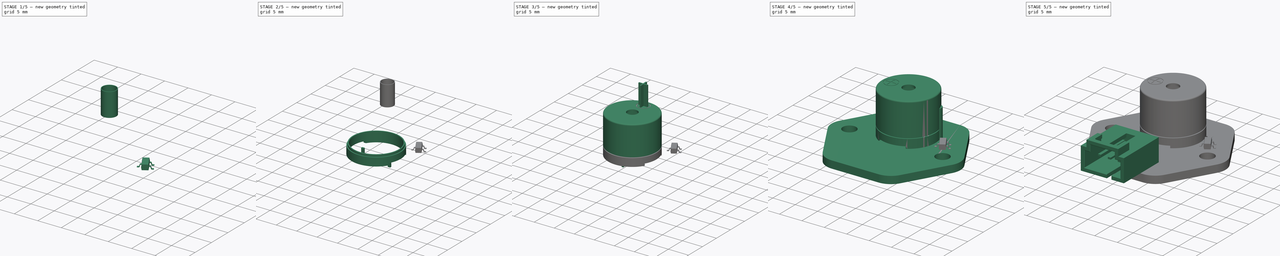
[diagram: build sequence overview — one tinted view per stage of 5, left to right]
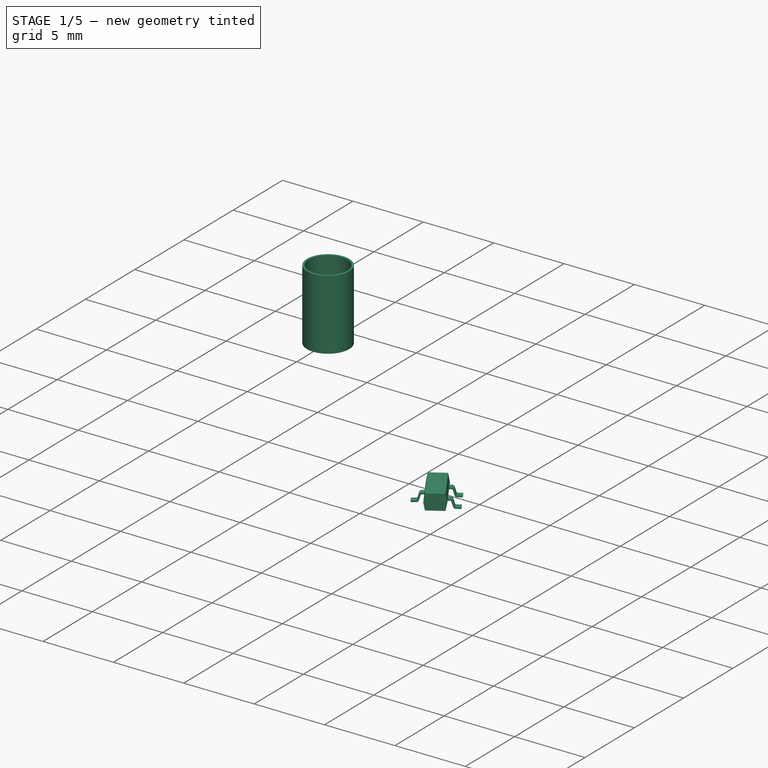
[diagram: stage 1 of 5 — iso view after this stage's code; geometry added in this stage tinted green]
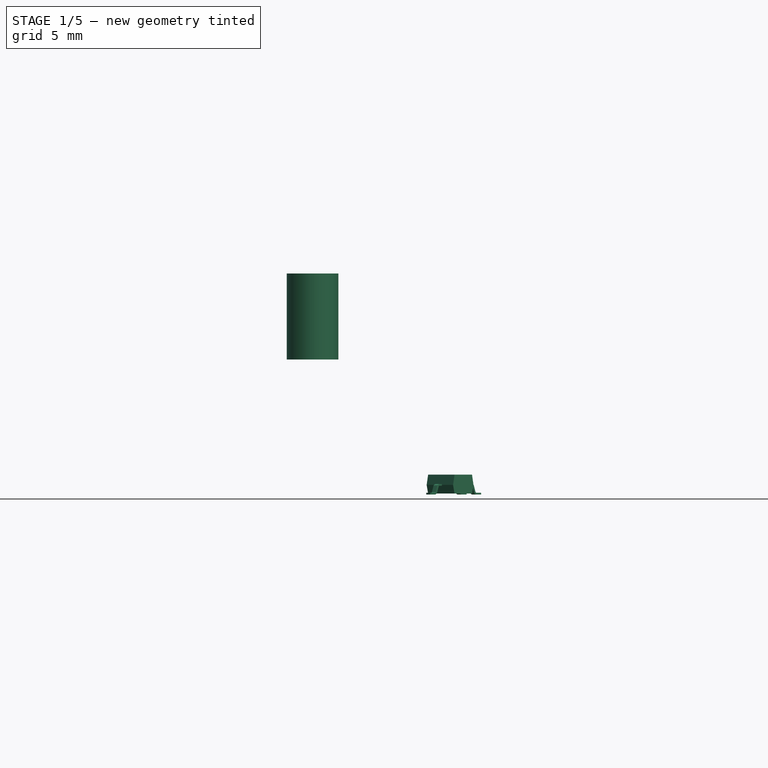
[diagram: stage 1 of 5 — front view after this stage's code; geometry added in this stage tinted green]
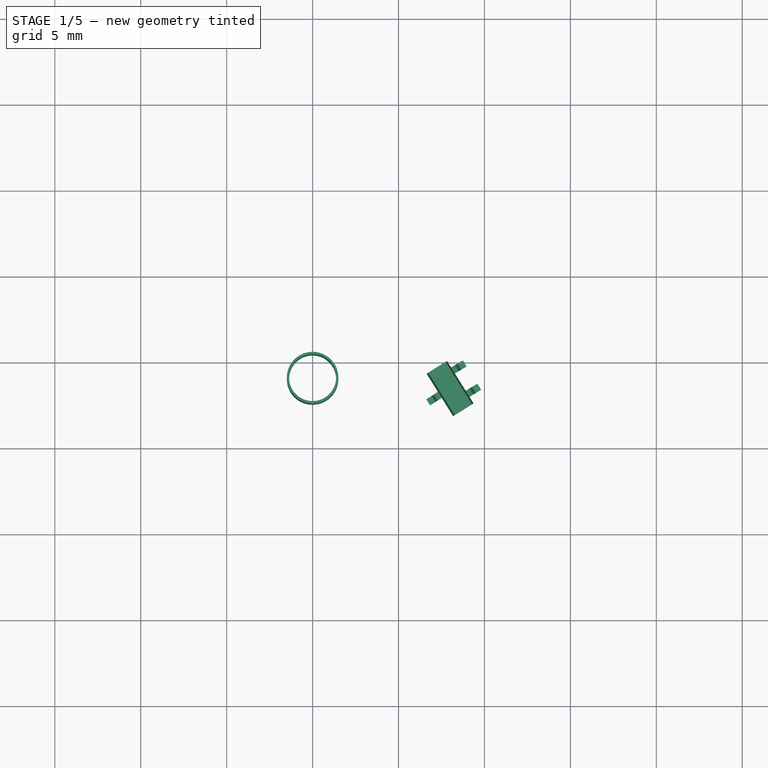
[diagram: stage 1 of 5 — top view after this stage's code; geometry added in this stage tinted green]
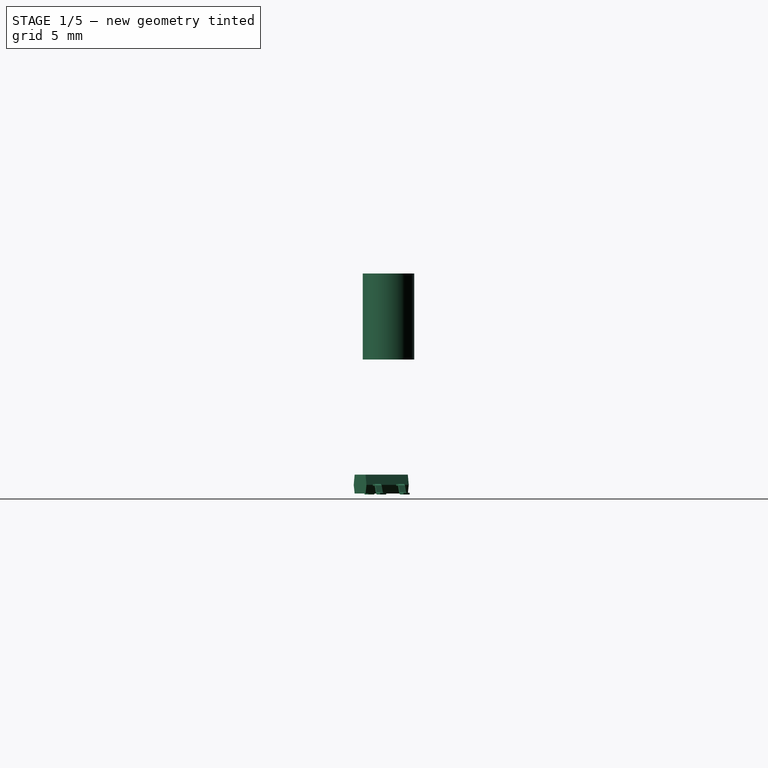
[diagram: stage 1 of 5 — right view after this stage's code; geometry added in this stage tinted green]
FCSTD DOCUMENT  (FreeCAD 0.14R3692 (Git))
Label: ZumBuzzer
License: CC-BY 3.0
LicenseURL: http://creativecommons.org/licenses/by/3.0/
objects: PartDesign::Pad×6, Part::Cut×6, Sketcher::SketchObject×6, Part::MultiFuse×4, Part::Cylinder×3, Part::Box×3, Part::Sweep×3, App::DocumentObjectGroup×2, PartDesign::Revolution×2, Part::Fillet×1
note: 42 computed .brp shape members not serialized (recipe doc carries the construction recipe); baked Part::Feature solids carry a one-line shape summary decoded from their .brp

FEATURE [Sketcher::SketchObject] Sketch004  label="Skt_troquelCircular"
  Placement = pos=(0,0,9.5) rot=(0,0,1;0rad)
  sketch-geometry (2):
    g0: Circle CenterX=0 CenterY=3.92336 CenterZ=0 NormalX=0 NormalY=0 NormalZ=1 Radius=1.5
    g1: Circle CenterX=0 CenterY=3.92336 CenterZ=0 NormalX=0 NormalY=0 NormalZ=1 Radius=1.36584
  constraints (3):
    c: Radius(g0) = 1.5
    c: PointOnObject(g0,g-2)
    c: Coincident(g1,g0)
FEATURE [PartDesign::Pad] Pad004  label="Ext_troquelCirc"
  Length = 5
  Length2 = 100
  Placement = pos=(0,0,9.5) rot=(0,0,1;0rad)
  Sketch = -> Sketch004
  Type = 0
FEATURE [Part::Sweep] Sweep003
  Frenet = false
  Placement = pos=(0,-0.8,0) rot=(0,0,1;3.14159rad)
  Sections = -> [Sketch001]
  Solid = true
  Spine = -> Sketch002 [Edge5,Edge4,Edge3,Edge2,Edge1]
  Transition = 1
FEATURE [Part::Sweep] Sweep004
  Frenet = false
  Sections = -> [Sketch001]
  Solid = true
  Spine = -> Sketch002 [Edge5,Edge4,Edge3,Edge2,Edge1]
  Transition = 1
FEATURE [Part::Sweep] Sweep005
  Frenet = false
  Placement = pos=(0,0.8,0) rot=(0,0,1;3.14159rad)
  Sections = -> [Sketch001]
  Solid = true
  Spine = -> Sketch002 [Edge5,Edge4,Edge3,Edge2,Edge1]
  Transition = 1
FEATURE [PartDesign::Pad] Pad006
  Length = 2.9
  Length2 = 100
  Placement = pos=(0,1.45,0) rot=(1,0,0;1.5708rad)
  Sketch = -> Sketch
  Type = 0
FEATURE [Part::MultiFuse] Fusion003  label="SOT23"
  Placement = pos=(8,3.5,2.2) rot=(0,0,-1;2.58309rad)
  Shapes = -> [Pad006,Sweep005,Sweep003,Sweep004]
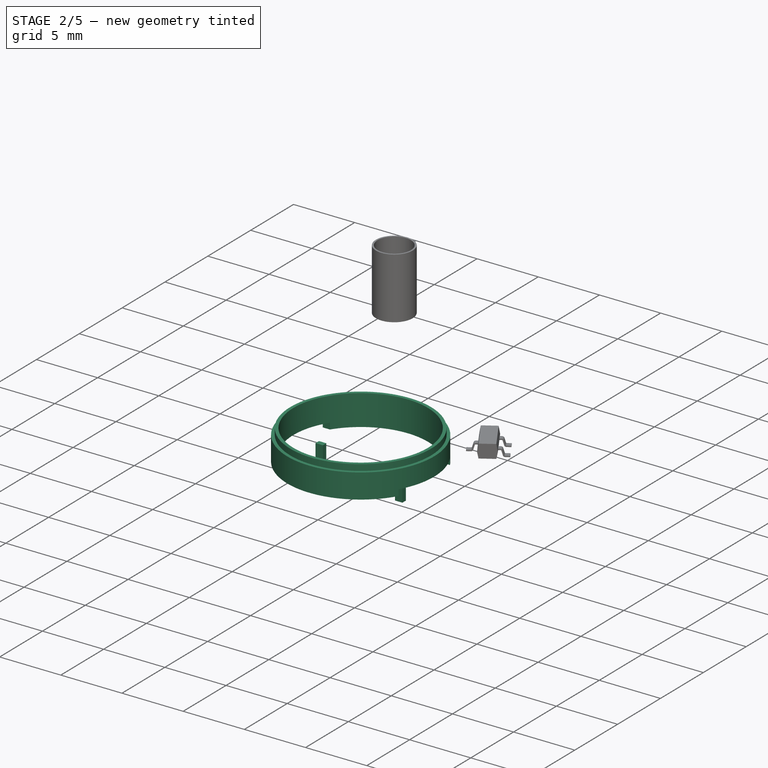
[diagram: stage 2 of 5 — iso view after this stage's code; geometry added in this stage tinted green]
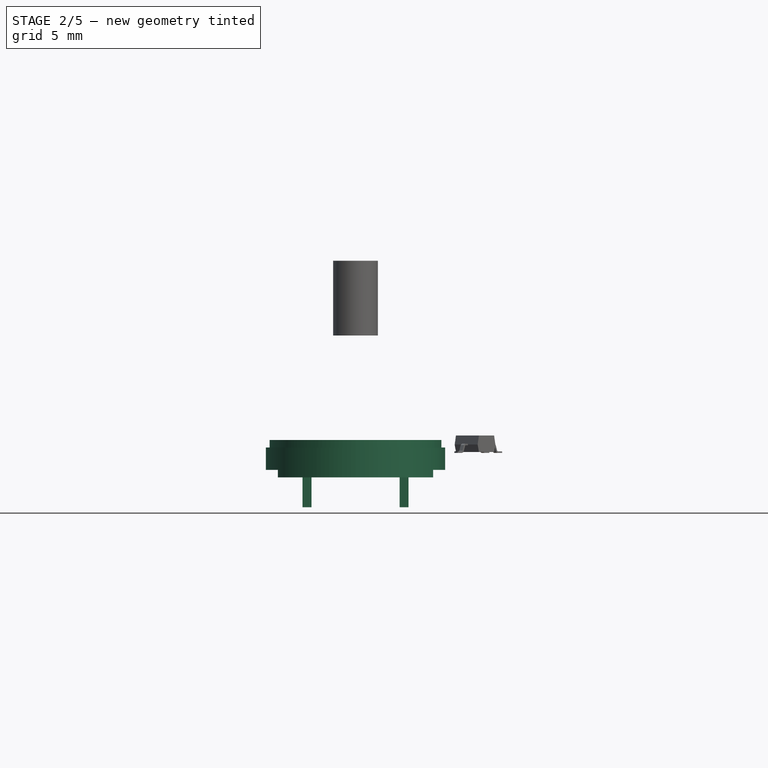
[diagram: stage 2 of 5 — front view after this stage's code; geometry added in this stage tinted green]
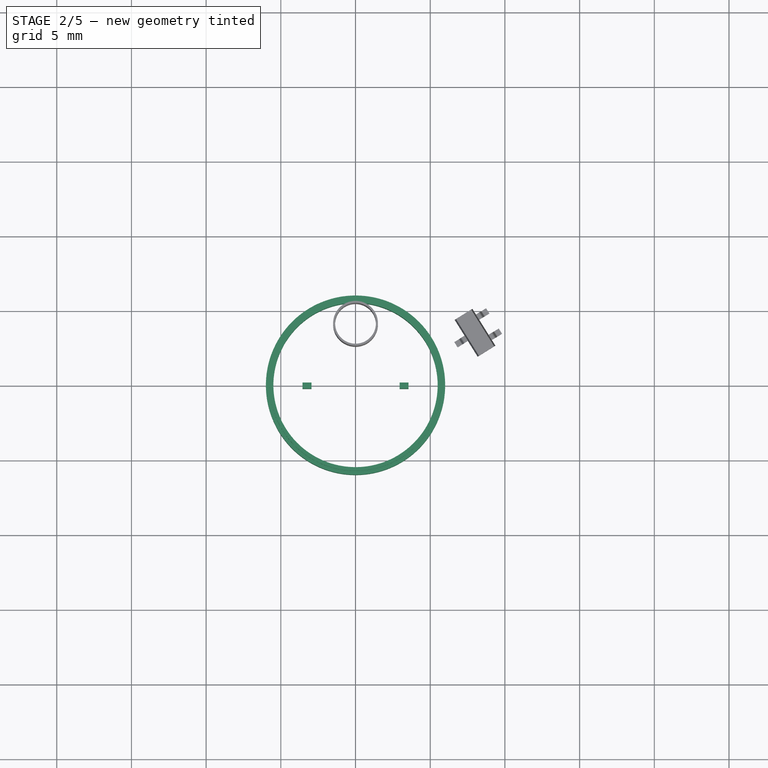
[diagram: stage 2 of 5 — top view after this stage's code; geometry added in this stage tinted green]
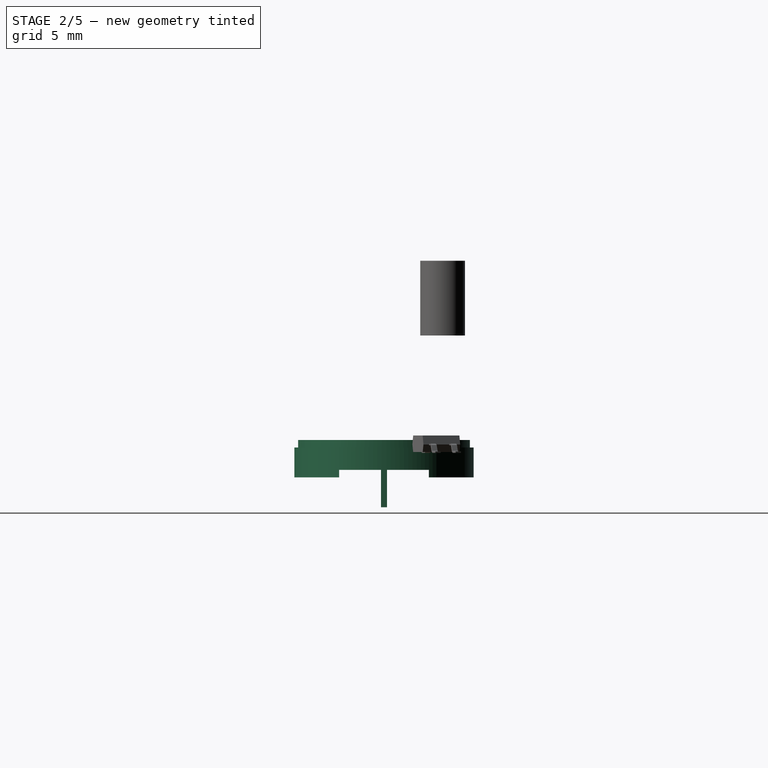
[diagram: stage 2 of 5 — right view after this stage's code; geometry added in this stage tinted green]
FEATURE [Part::Box] Box  label="pata1_buzzer"
  Height = 2.5
  Length = 0.6
  Placement = pos=(2.95,-0.2,-2) rot=(0,0,1;0rad)
  Width = 0.4
FEATURE [Part::Box] Box001  label="Rebaje_AroInf"
  Height = 0.5
  Length = 6
  Placement = pos=(-3,-7,0) rot=(0,0,1;0rad)
  Width = 15
FEATURE [PartDesign::Revolution] Revolution001  label="Rev_AroInf"
  Angle = 360
  Axis = (0,0,1)
  Base = (0,0,0)
  Placement = pos=(0,0,0) rot=(1,0,0;1.5708rad)
  ReferenceAxis = -> Sketch002 [V_Axis]
  Reversed = true
  Sketch = -> Sketch002
FEATURE [Part::Box] Box002  label="pata2_buzzer"
  Height = 2.5
  Length = 0.6
  Placement = pos=(-3.55,-0.2,-2) rot=(0,0,1;0rad)
  Width = 0.4
FEATURE [Part::Cut] Cut005  label="AroInferior"
  Base = -> Revolution001
  Placement = pos=(0,0,0) rot=(0,0,1;1.5708rad)
  Tool = -> Box001
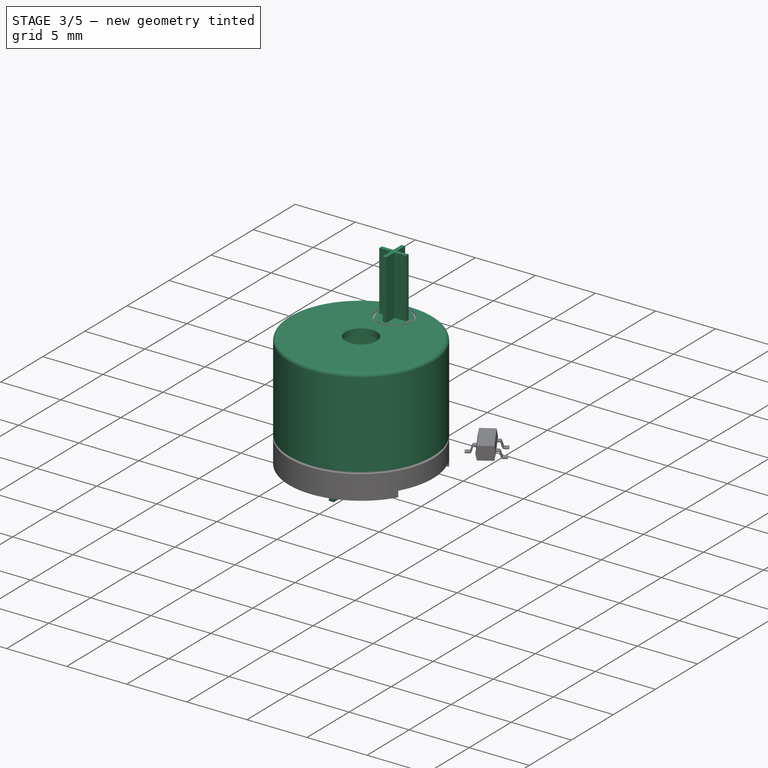
[diagram: stage 3 of 5 — iso view after this stage's code; geometry added in this stage tinted green]
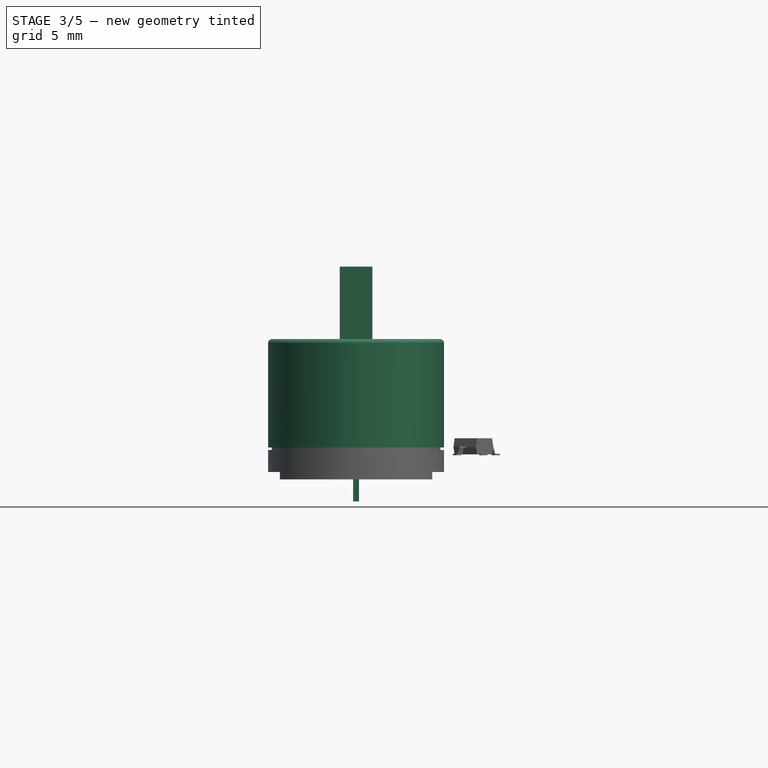
[diagram: stage 3 of 5 — front view after this stage's code; geometry added in this stage tinted green]
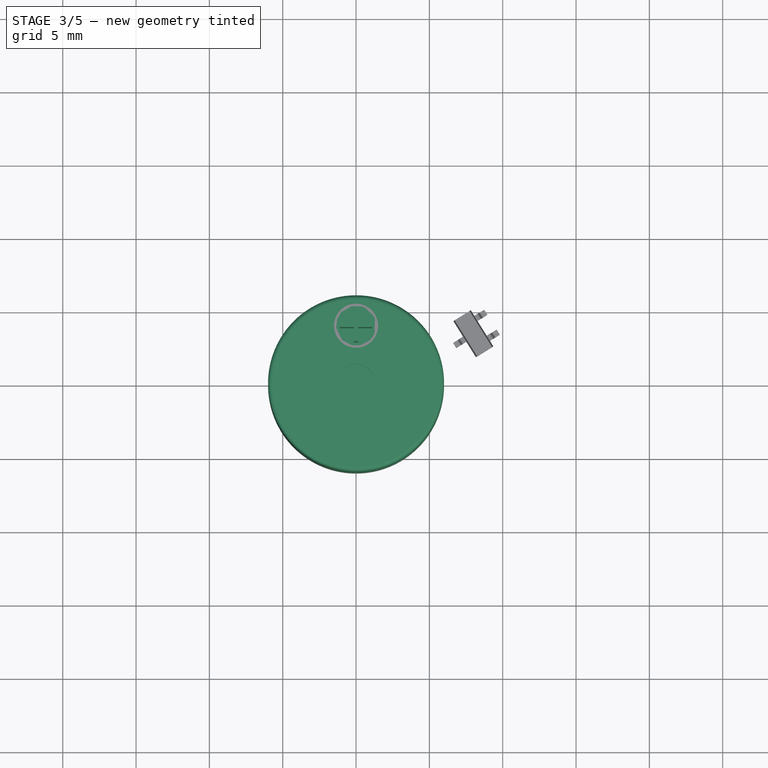
[diagram: stage 3 of 5 — top view after this stage's code; geometry added in this stage tinted green]
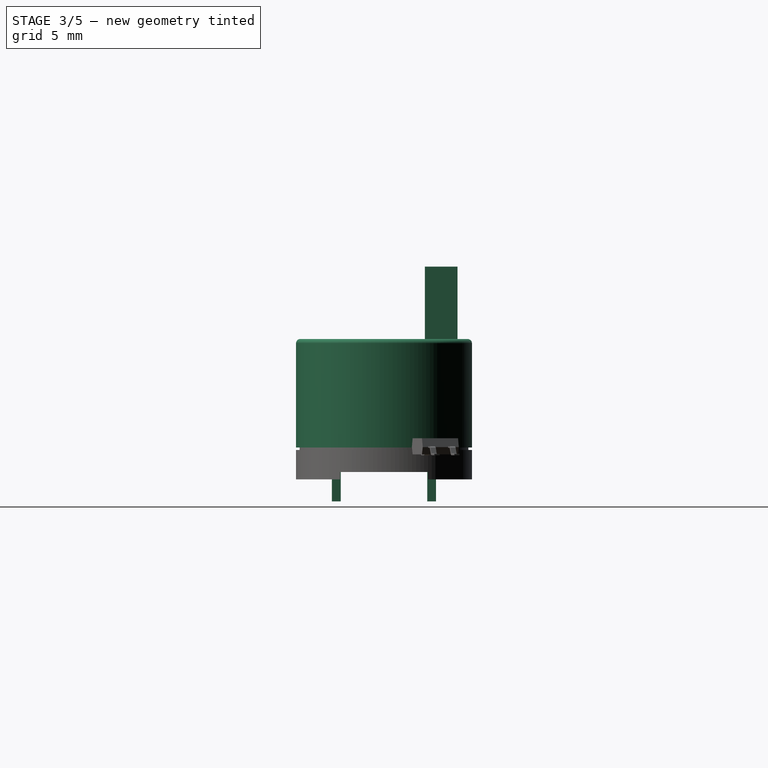
[diagram: stage 3 of 5 — right view after this stage's code; geometry added in this stage tinted green]
FEATURE [App::DocumentObjectGroup] Grupo001  label="GR_PCB"
  Group = -> [Pad001,Pad002,Cut002]
FEATURE [Sketcher::SketchObject] Sketch002  label="Skt_AroInf"
  Placement = pos=(0,0,0) rot=(1,0,0;1.5708rad)
  sketch-geometry (6):
    g0: LineSegment StartX=5.5 StartY=2.5 StartZ=0 EndX=5.5 EndY=0 EndZ=0
    g1: LineSegment StartX=5.5 StartY=0 StartZ=0 EndX=6 EndY=0 EndZ=0
    g2: LineSegment StartX=6 StartY=0 StartZ=0 EndX=6 EndY=2 EndZ=0
    g3: LineSegment StartX=6 StartY=2 StartZ=0 EndX=5.75 EndY=2 EndZ=0
    g4: LineSegment StartX=5.75 StartY=2 StartZ=0 EndX=5.75 EndY=2.5 EndZ=0
    g5: LineSegment StartX=5.75 StartY=2.5 StartZ=0 EndX=5.5 EndY=2.5 EndZ=0
  constraints (18):
    c: PointOnObject(g0,g-1)
    c: Vertical(g0)
    c: Coincident(g0,g1)
    c: PointOnObject(g1,g-1)
    c: Coincident(g1,g2)
    c: Vertical(g2)
    c: Coincident(g2,g3)
    c: Coincident(g3,g4)
    c: Vertical(g4)
    c: Coincident(g4,g5)
    c: Coincident(g5,g0)
    c: Horizontal(g5)
    c: Horizontal(g3)
    c: DistanceX(g1) = 0.5
    c: DistanceY(g0,g1) = -2.5
    c: DistanceY(g2,g1) = -2
    c: DistanceX(g5) = -0.25
    c: DistanceX(g-1,g0) = 5.5
FEATURE [Part::Cylinder] Cylinder002  label="Cil01_buzzer"
  Angle = 360
  Height = 2
  Radius = 5.5
FEATURE [Sketcher::SketchObject] Sketch003  label="SKT_borde"
  Placement = pos=(0,0,0) rot=(1,0,0;1.5708rad)
  sketch-geometry (8):
    g0: LineSegment StartX=1.3 StartY=9.57124 StartZ=0 EndX=6 EndY=9.57124 EndZ=0
    g1: LineSegment StartX=6 StartY=9.57124 StartZ=0 EndX=6 EndY=2.17124 EndZ=0
    g2: LineSegment StartX=6 StartY=2.17124 StartZ=0 EndX=5.75 EndY=2.17124 EndZ=0
    g3: LineSegment StartX=5.75 StartY=2.17124 StartZ=0 EndX=5.75 EndY=2.57124 EndZ=0
    g4: LineSegment StartX=5.75 StartY=2.57124 StartZ=0 EndX=5.5 EndY=2.57124 EndZ=0
    g5: LineSegment StartX=5.5 StartY=2.57124 StartZ=0 EndX=5.5 EndY=9.07124 EndZ=0
    g6: LineSegment StartX=5.5 StartY=9.07124 StartZ=0 EndX=1.3 EndY=9.07124 EndZ=0
    g7: LineSegment StartX=1.3 StartY=9.07124 StartZ=0 EndX=1.3 EndY=9.57124 EndZ=0
  constraints (24):
    c: Horizontal(g0)
    c: Coincident(g0,g1)
    c: Vertical(g1)
    c: Coincident(g1,g2)
    c: Coincident(g2,g3)
    c: Vertical(g3)
    c: Coincident(g3,g4)
    c: Horizontal(g4)
    c: Coincident(g4,g5)
    c: Vertical(g5)
    c: Coincident(g5,g6)
    c: Horizontal(g6)
    c: Coincident(g6,g7)
    c: Coincident(g7,g0)
    c: DistanceY(g1) = -7.4
    c: Horizontal(g2)
    c: Vertical(g7)
    c: DistanceY(g3) = 0.4
    c: DistanceY(g7) = 0.5
    c: DistanceX(g0,g5) = -0.5
    c: DistanceX(g2,g1) = 0.25
    c: DistanceX(g-1,g1) = 6
    c: DistanceX(g-1,g0) = 1.3
    c: DistanceY(g-1,g1) = 2.17124
FEATURE [PartDesign::Revolution] Revolution  label="RevolutionBorde"
  Angle = 360
  Axis = (0,0,1)
  Base = (0,0,0)
  Placement = pos=(0,0,0) rot=(1,0,0;1.5708rad)
  ReferenceAxis = -> Sketch003 [V_Axis]
  Reversed = true
  Sketch = -> Sketch003
FEATURE [Part::Fillet] Fillet  label="AroSuperior_b"
  Base = -> Revolution
  Edges = 1 edges r=0.3: [Edge2]
FEATURE [Part::MultiFuse] Fusion002  label="Interior_buzzer"
  Placement = pos=(0,0,0.5) rot=(0,0,1;1.5708rad)
  Shapes = -> [Cylinder002,Box,Box002]
FEATURE [Part::Cut] Cut004  label="SubTapa"
  Base = -> Fillet
  Tool = -> Pad004
FEATURE [Sketcher::SketchObject] Sketch005  label="Skt_troquelPlus"
  Placement = pos=(0,0,9.5) rot=(0,0,1;0rad)
  sketch-geometry (12):
    g0: LineSegment StartX=-0.15 StartY=5.01496 StartZ=0 EndX=0.15 EndY=5.01496 EndZ=0
    g1: LineSegment StartX=0.15 StartY=5.01496 StartZ=0 EndX=0.15 EndY=4.05141 EndZ=0
    g2: LineSegment StartX=0.15 StartY=4.05141 StartZ=0 EndX=1.11355 EndY=4.05141 EndZ=0
    g3: LineSegment StartX=1.11355 StartY=4.05141 StartZ=0 EndX=1.11355 EndY=3.75141 EndZ=0
    g4: LineSegment StartX=1.11355 StartY=3.75141 StartZ=0 EndX=0.15 EndY=3.75141 EndZ=0
    g5: LineSegment StartX=0.15 StartY=3.75141 StartZ=0 EndX=0.15 EndY=2.78787 EndZ=0
    g6: LineSegment StartX=0.15 StartY=2.78787 StartZ=0 EndX=-0.15 EndY=2.78787 EndZ=0
    g7: LineSegment StartX=-0.15 StartY=2.78787 StartZ=0 EndX=-0.15 EndY=3.75141 EndZ=0
    g8: LineSegment StartX=-0.15 StartY=3.75141 StartZ=0 EndX=-1.11355 EndY=3.75141 EndZ=0
    g9: LineSegment StartX=-1.11355 StartY=3.75141 StartZ=0 EndX=-1.11355 EndY=4.05141 EndZ=0
    g10: LineSegment StartX=-1.11355 StartY=4.05141 StartZ=0 EndX=-0.15 EndY=4.05141 EndZ=0
    g11: LineSegment StartX=-0.15 StartY=4.05141 StartZ=0 EndX=-0.15 EndY=5.01496 EndZ=0
  constraints (36):
    c: Coincident(g0,g1)
    c: Coincident(g1,g2)
    c: Coincident(g2,g3)
    c: Coincident(g3,g4)
    c: Coincident(g4,g5)
    c: Coincident(g5,g6)
    c: Coincident(g6,g7)
    c: Coincident(g7,g8)
    c: Coincident(g8,g9)
    c: Coincident(g9,g10)
    c: Coincident(g10,g11)
    c: Coincident(g11,g0)
    c: Vertical(g11)
    c: Vertical(g1)
    c: Vertical(g7)
    c: Vertical(g5)
    c: Vertical(g9)
    c: Vertical(g3)
    c: Horizontal(g0)
    c: Horizontal(g10)
    c: Horizontal(g2)
    c: Horizontal(g8)
    c: Horizontal(g4)
    c: Horizontal(g6)
    c: Equal(g11,g1)
    c: Equal(g1,g2)
    c: Equal(g2,g4)
    c: Equal(g4,g5)
    c: Equal(g5,g7)
    c: Equal(g7,g8)
    c: Equal(g8,g10)
    c: Equal(g0,g3)
    c: Equal(g3,g6)
    c: Equal(g6,g9)
    c: DistanceX(g0) = 0.3
    c: Symmetric(g1,g10,g-2)
FEATURE [PartDesign::Pad] Pad003  label="Ext_TroquelPlus"
  Length = 5
  Length2 = 100
  Placement = pos=(0,0,9.5) rot=(0,0,1;0rad)
  Sketch = -> Sketch005
  Type = 0
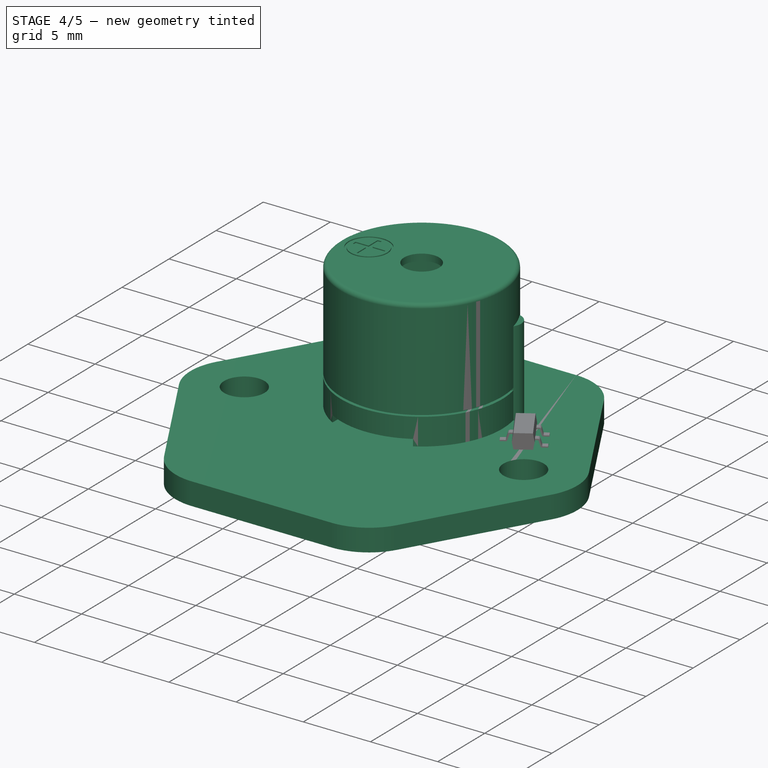
[diagram: stage 4 of 5 — iso view after this stage's code; geometry added in this stage tinted green]
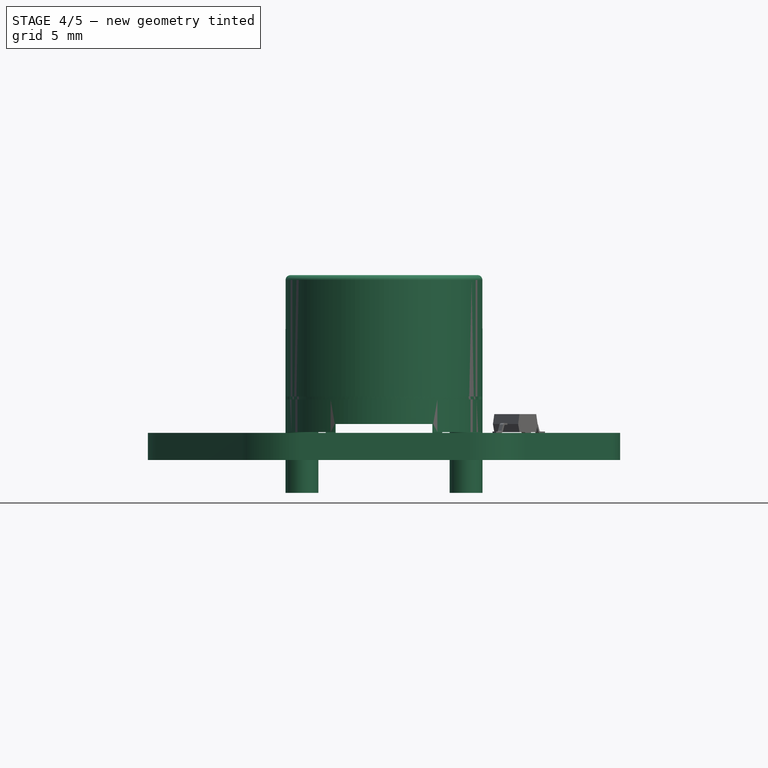
[diagram: stage 4 of 5 — front view after this stage's code; geometry added in this stage tinted green]
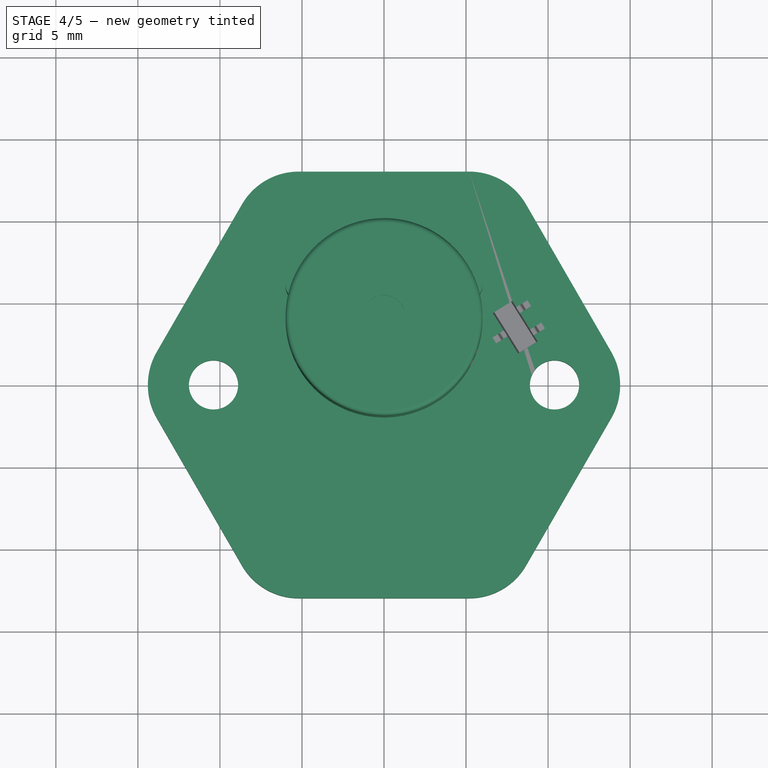
[diagram: stage 4 of 5 — top view after this stage's code; geometry added in this stage tinted green]
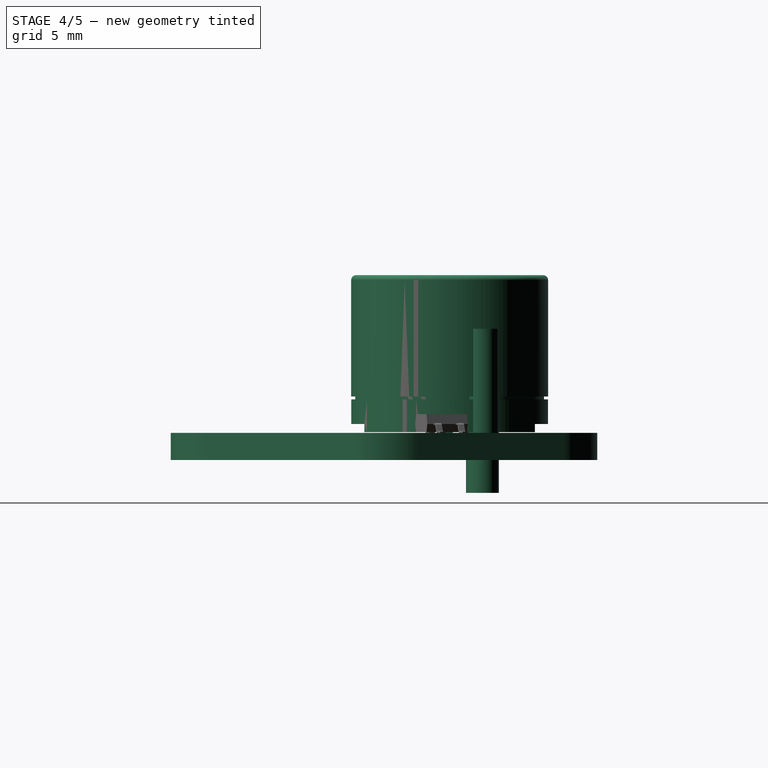
[diagram: stage 4 of 5 — right view after this stage's code; geometry added in this stage tinted green]
FEATURE [PartDesign::Pad] Pad  label="CuerpoBase001"
  Length = 1.66
  Length2 = 100
  Type = 0
FEATURE [Part::Cylinder] Cylinder  label="Cilindro"
  Angle = 360
  Height = 10
  Placement = pos=(-5,6,-2) rot=(0,0,1;0rad)
  Radius = 1
FEATURE [Part::Cylinder] Cylinder001  label="Cilindro004"
  Angle = 360
  Height = 10
  Placement = pos=(5,6,-2) rot=(0,0,1;0rad)
  Radius = 1
FEATURE [Part::Cut] Cut003  label="Tapa"
  Base = -> Cut004
  Tool = -> Pad003
FEATURE [Part::MultiFuse] Fusion001  label="Buzzer"
  Placement = pos=(0,4,1.7) rot=(0,0,1;1.5708rad)
  Shapes = -> [Cut003,Fusion002,Cut005]
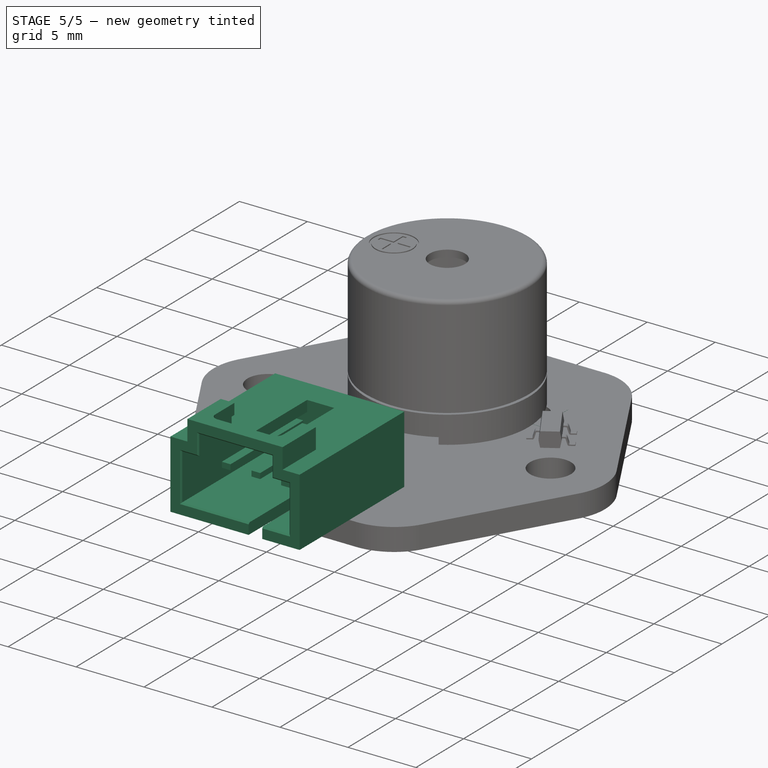
[diagram: stage 5 of 5 — iso view after this stage's code; geometry added in this stage tinted green]
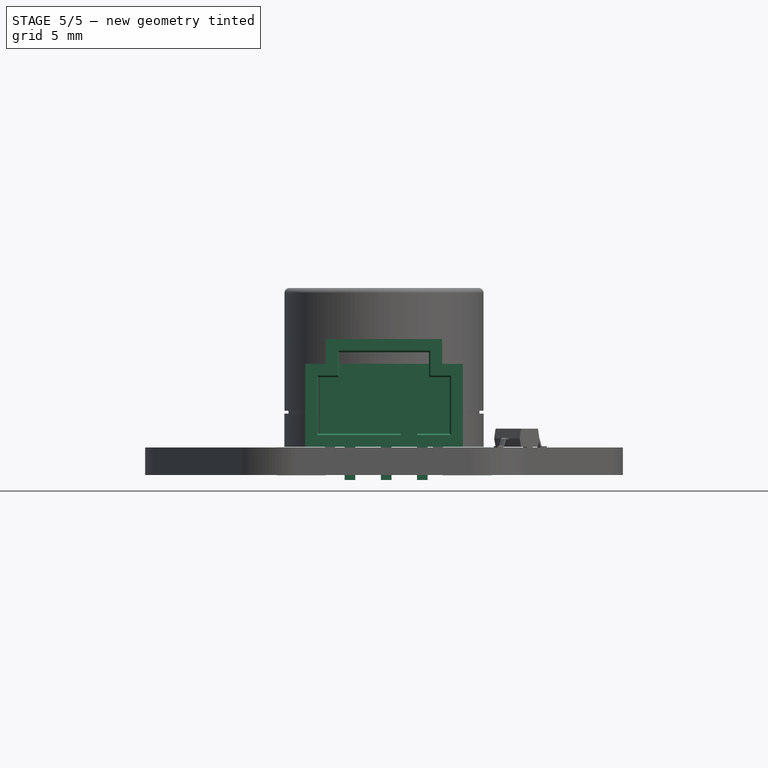
[diagram: stage 5 of 5 — front view after this stage's code; geometry added in this stage tinted green]
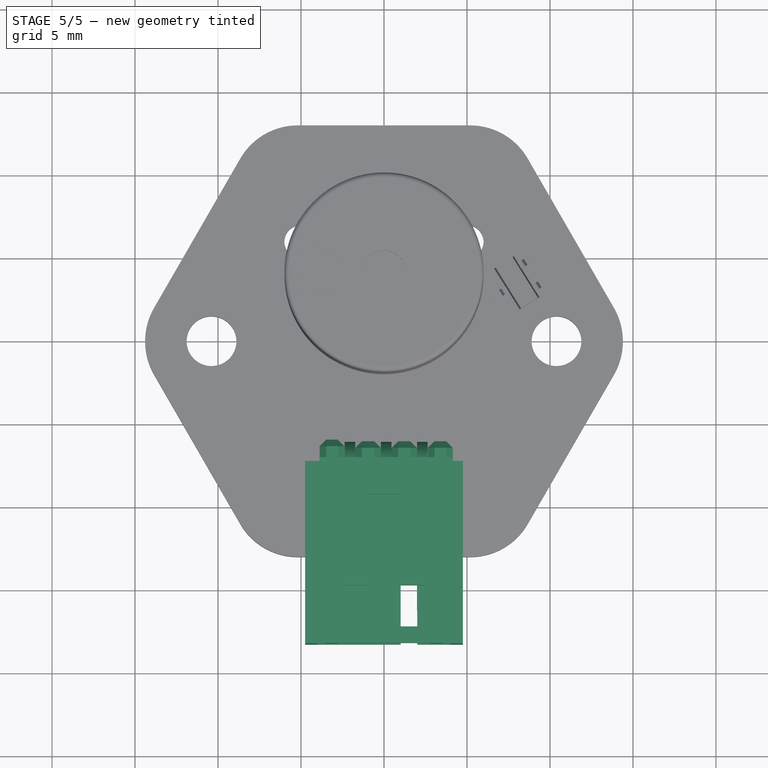
[diagram: stage 5 of 5 — top view after this stage's code; geometry added in this stage tinted green]
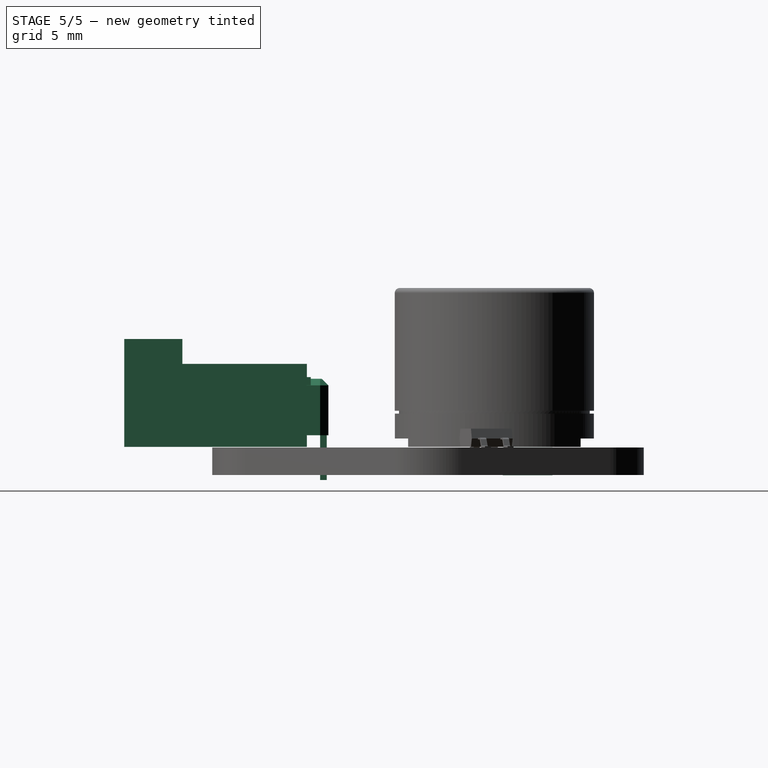
[diagram: stage 5 of 5 — right view after this stage's code; geometry added in this stage tinted green]
FEATURE [Part::Cut] Cut
  Base = -> Pad
  Tool = -> Cylinder
FEATURE [Part::Cut] Cut001  label="AlojaConectores"
  Placement = pos=(0,0.7,0.7) rot=(0,0,1;1.5708rad)
FEATURE [Part::MultiFuse] Fusion  label="Conectores"
  Placement = pos=(0,0.7,0.7) rot=(0,0,1;1.5708rad)
FEATURE [App::DocumentObjectGroup] Grupo  label="GR_Conector"
  Group = -> [Cut001,Fusion]
FEATURE [Sketcher::SketchObject] Sketch
  Placement = pos=(-5,6,-0.01) rot=(0,0,1;0rad)
  sketch-geometry (5):
    g0: LineSegment StartX=-1.4808 StartY=1.5 StartZ=0 EndX=1.4808 EndY=1.5 EndZ=0
    g1: LineSegment StartX=1.4808 StartY=1.5 StartZ=0 EndX=1.4808 EndY=-1.5 EndZ=0
    g2: LineSegment StartX=1.4808 StartY=-1.5 StartZ=0 EndX=-1.4808 EndY=-1.5 EndZ=0
    g3: LineSegment StartX=-1.4808 StartY=-1.5 StartZ=0 EndX=-1.4808 EndY=1.5 EndZ=0
    g4: Circle CenterX=0 CenterY=0 CenterZ=0 NormalX=0 NormalY=0 NormalZ=1 Radius=1
  constraints (13):
    c: Coincident(g0,g1)
    c: Coincident(g1,g2)
    c: Coincident(g2,g3)
    c: Coincident(g3,g0)
    c: Horizontal(g0)
    c: Horizontal(g2)
    c: Vertical(g1)
    c: Vertical(g3)
    c: Symmetric(g0,g1,g-1)
    c: Symmetric(g0,g2,g-1)
    c: DistanceY(g3) = 3
    c: Coincident(g4,g-1)
    c: Radius(g4) = 1
FEATURE [PartDesign::Pad] Pad001
  Length = 1.68
  Length2 = 100
  Placement = pos=(-5,6,-0.01) rot=(0,0,1;0rad)
  Sketch = -> Sketch
  Type = 0
FEATURE [Sketcher::SketchObject] Sketch001
  Placement = pos=(5,6,-0.01) rot=(0,0,1;0rad)
  sketch-geometry (5):
    g0: LineSegment StartX=-1.4808 StartY=1.5 StartZ=0 EndX=1.4808 EndY=1.5 EndZ=0
    g1: LineSegment StartX=1.4808 StartY=1.5 StartZ=0 EndX=1.4808 EndY=-1.5 EndZ=0
    g2: LineSegment StartX=1.4808 StartY=-1.5 StartZ=0 EndX=-1.4808 EndY=-1.5 EndZ=0
    g3: LineSegment StartX=-1.4808 StartY=-1.5 StartZ=0 EndX=-1.4808 EndY=1.5 EndZ=0
    g4: Circle CenterX=0 CenterY=0 CenterZ=0 NormalX=0 NormalY=0 NormalZ=1 Radius=1
  constraints (13):
    c: Coincident(g0,g1)
    c: Coincident(g1,g2)
    c: Coincident(g2,g3)
    c: Coincident(g3,g0)
    c: Horizontal(g0)
    c: Horizontal(g2)
    c: Vertical(g1)
    c: Vertical(g3)
    c: Symmetric(g0,g1,g-1)
    c: Symmetric(g0,g2,g-1)
    c: DistanceY(g3) = 3
    c: Coincident(g4,g-1)
    c: Radius(g4) = 1
FEATURE [PartDesign::Pad] Pad002
  Length = 1.68
  Length2 = 100
  Placement = pos=(5,6,-0.01) rot=(0,0,1;0rad)
  Sketch = -> Sketch001
  Type = 0
FEATURE [Part::Cut] Cut002
  Base = -> Cut
  Tool = -> Cylinder001
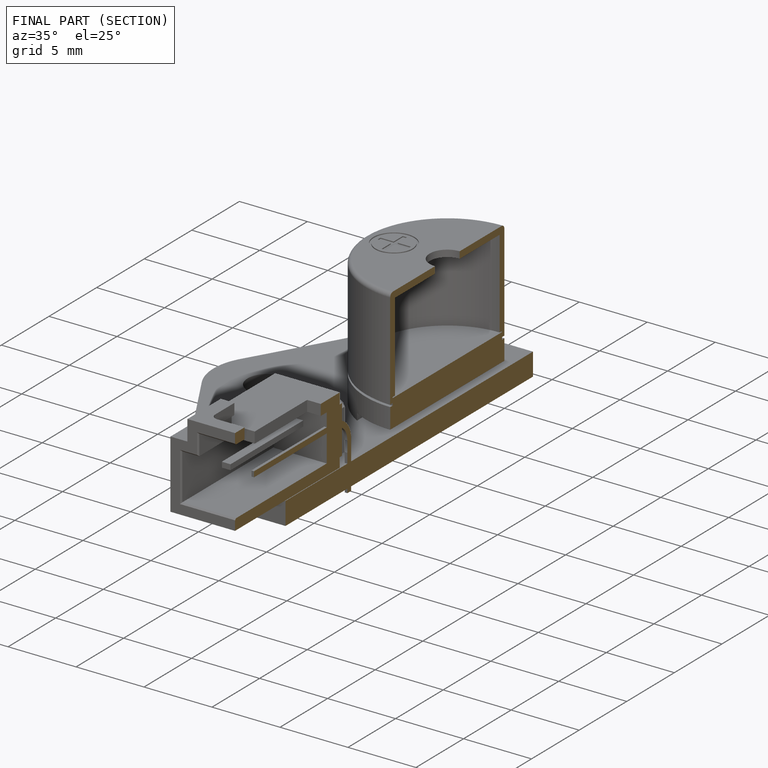
[diagram: finished part — half-section view (interior)]
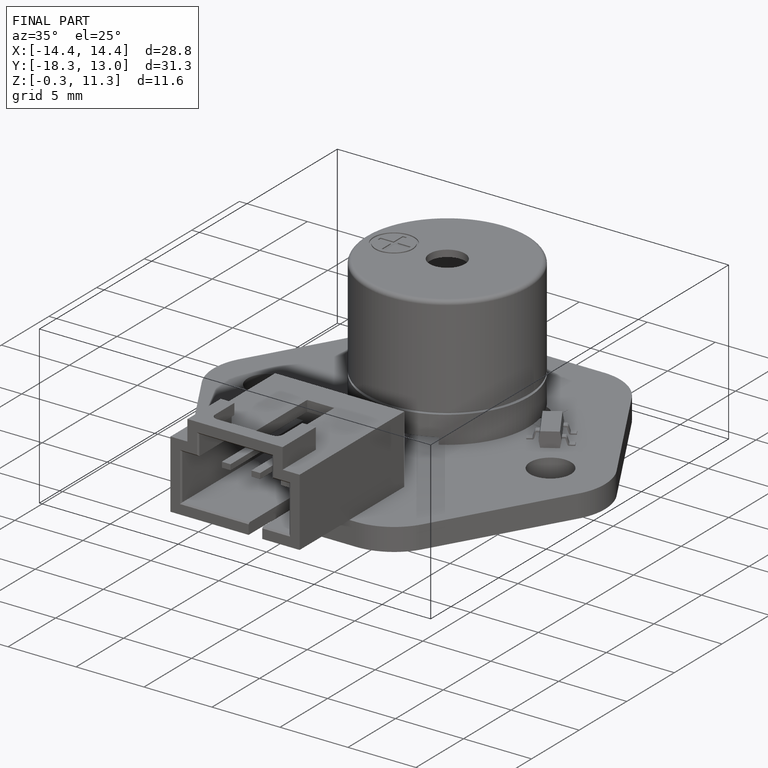
[diagram: finished part — iso view with bounding-box wireframe]
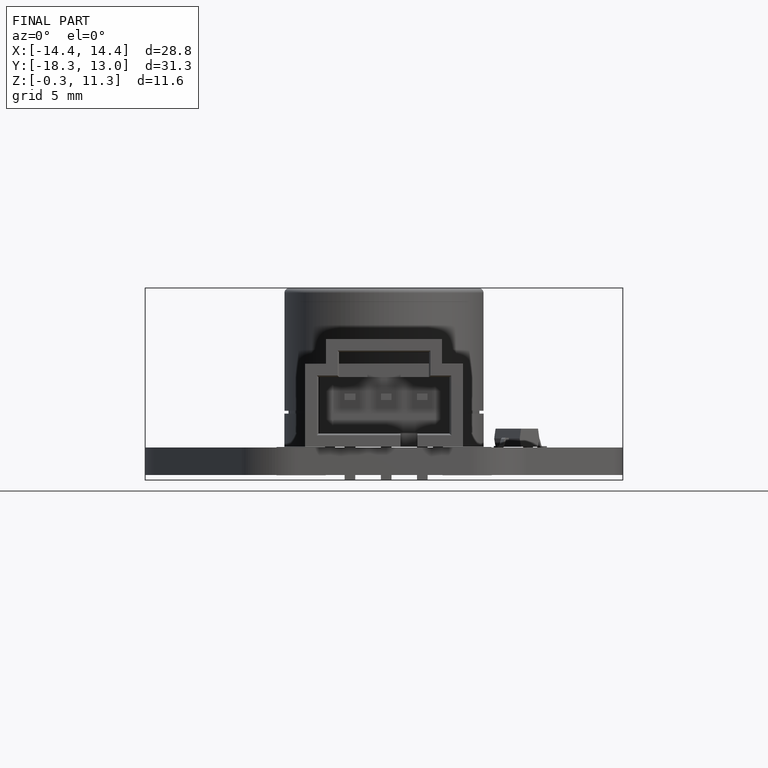
[diagram: finished part — front view with bounding-box wireframe]
